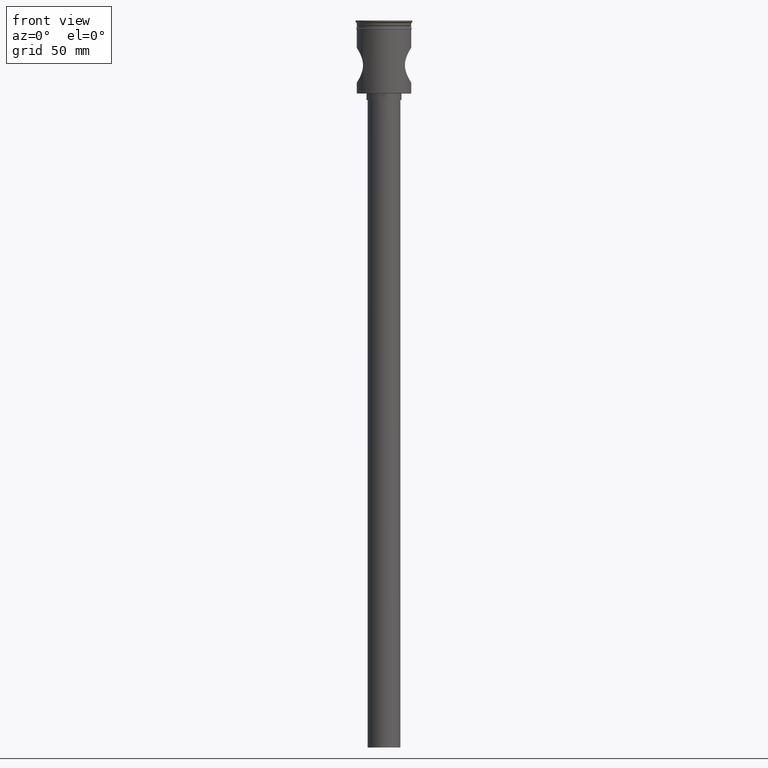
[diagram: clean part render]
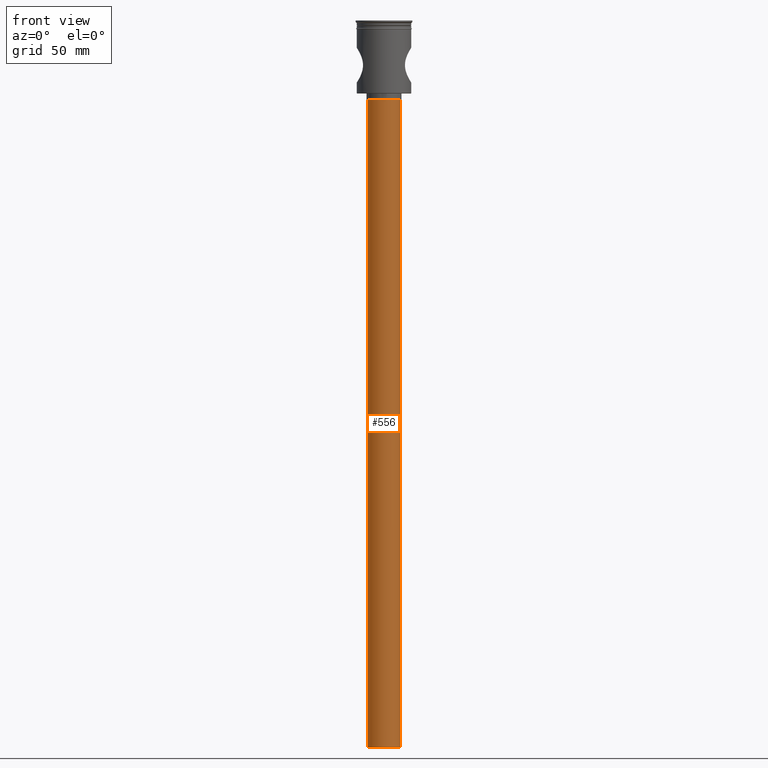
[diagram: same view with one face highlighted and labeled with its STEP entity id]
A machine part, front view. The second image highlights one B-rep face of the part: STEP entity #556.
In plain terms, the highlighted cylindrical surface (edge-blend (fillet) strip) has radius 7.5 mm, axis along (-0, -0, 1).
Its self-contained STEP definition (entity closure, byte-faithful):
#26 = ORIENTED_EDGE ( 'NONE', *, *, #376, .T. ) ;
#53 = VECTOR ( 'NONE', #443, 1000.000000000000000 ) ;
#201 = VECTOR ( 'NONE', #208, 1000.000000000000000 ) ;
#208 = DIRECTION ( 'NONE',  ( -0.000000000000000000, -0.000000000000000000, 1.000000000000000000 ) ) ;
#316 = CARTESIAN_POINT ( 'NONE',  ( 7.500000000000000000, 0.000000000000000000, -333.5000000000000000 ) ) ;
#321 = CARTESIAN_POINT ( 'NONE',  ( -7.500000000000000000, 9.184850993605147944E-16, -333.5000000000000000 ) ) ;
#332 = ORIENTED_EDGE ( 'NONE', *, *, #660, .T. ) ;
#370 = CARTESIAN_POINT ( 'NONE',  ( 0.000000000000000000, 0.000000000000000000, -333.5000000000000000 ) ) ;
#376 = EDGE_CURVE ( 'NONE', #406, #1190, #766, .T. ) ;
#394 = DIRECTION ( 'NONE',  ( 1.000000000000000000, 0.000000000000000000, 0.000000000000000000 ) ) ;
#406 = VERTEX_POINT ( 'NONE', #316 ) ;
#443 = DIRECTION ( 'NONE',  ( -0.000000000000000000, -0.000000000000000000, 1.000000000000000000 ) ) ;
#464 = LINE ( 'NONE', #321, #201 ) ;
#471 = VERTEX_POINT ( 'NONE', #1536 ) ;
#545 = VERTEX_POINT ( 'NONE', #929 ) ;
#556 = ADVANCED_FACE ( 'NONE', ( #1231 ), #733, .T. ) ;
#643 = DIRECTION ( 'NONE',  ( -0.000000000000000000, -0.000000000000000000, 1.000000000000000000 ) ) ;
#660 = EDGE_CURVE ( 'NONE', #1190, #471, #1166, .T. ) ;
#733 = CYLINDRICAL_SURFACE ( 'NONE', #757, 7.500000000000000000 ) ;
#734 = CIRCLE ( 'NONE', #1116, 7.500000000000000000 ) ;
#757 = AXIS2_PLACEMENT_3D ( 'NONE', #370, #643, #394 ) ;
#766 = LINE ( 'NONE', #1269, #53 ) ;
#783 = EDGE_CURVE ( 'NONE', #545, #471, #464, .T. ) ;
#796 = DIRECTION ( 'NONE',  ( -1.000000000000000000, 0.000000000000000000, 0.000000000000000000 ) ) ;
#825 = EDGE_LOOP ( 'NONE', ( #889, #838, #26, #332 ) ) ;
#838 = ORIENTED_EDGE ( 'NONE', *, *, #1297, .F. ) ;
#889 = ORIENTED_EDGE ( 'NONE', *, *, #783, .F. ) ;
#929 = CARTESIAN_POINT ( 'NONE',  ( -7.500000000000000000, 9.184850993605147944E-16, -333.5000000000000000 ) ) ;
#992 = CARTESIAN_POINT ( 'NONE',  ( 0.000000000000000000, 0.000000000000000000, -333.5000000000000000 ) ) ;
#1063 = AXIS2_PLACEMENT_3D ( 'NONE', #1497, #1357, #796 ) ;
#1116 = AXIS2_PLACEMENT_3D ( 'NONE', #992, #1466, #1352 ) ;
#1166 = CIRCLE ( 'NONE', #1063, 7.500000000000000000 ) ;
#1190 = VERTEX_POINT ( 'NONE', #1204 ) ;
#1204 = CARTESIAN_POINT ( 'NONE',  ( 7.500000000000000000, 0.000000000000000000, -36.50000000000000711 ) ) ;
#1231 = FACE_OUTER_BOUND ( 'NONE', #825, .T. ) ;
#1269 = CARTESIAN_POINT ( 'NONE',  ( 7.500000000000000000, 0.000000000000000000, -333.5000000000000000 ) ) ;
#1297 = EDGE_CURVE ( 'NONE', #406, #545, #734, .T. ) ;
#1352 = DIRECTION ( 'NONE',  ( -1.000000000000000000, 0.000000000000000000, 0.000000000000000000 ) ) ;
#1357 = DIRECTION ( 'NONE',  ( 0.000000000000000000, 0.000000000000000000, -1.000000000000000000 ) ) ;
#1466 = DIRECTION ( 'NONE',  ( 0.000000000000000000, 0.000000000000000000, -1.000000000000000000 ) ) ;
#1497 = CARTESIAN_POINT ( 'NONE',  ( 0.000000000000000000, 0.000000000000000000, -36.50000000000000711 ) ) ;
#1536 = CARTESIAN_POINT ( 'NONE',  ( -7.500000000000000000, 9.184850993605147944E-16, -36.50000000000000711 ) ) ;